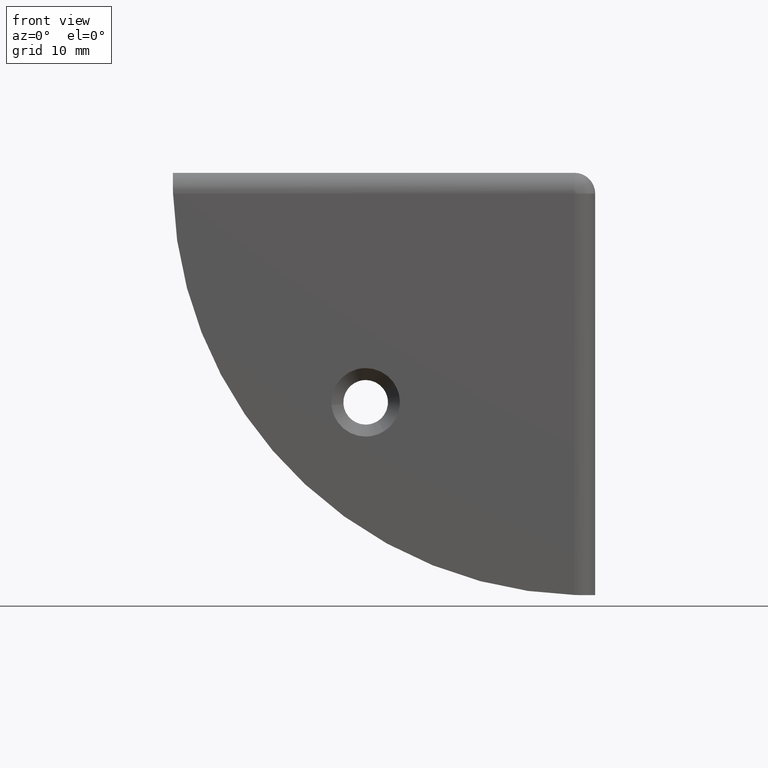
[diagram: clean part render]
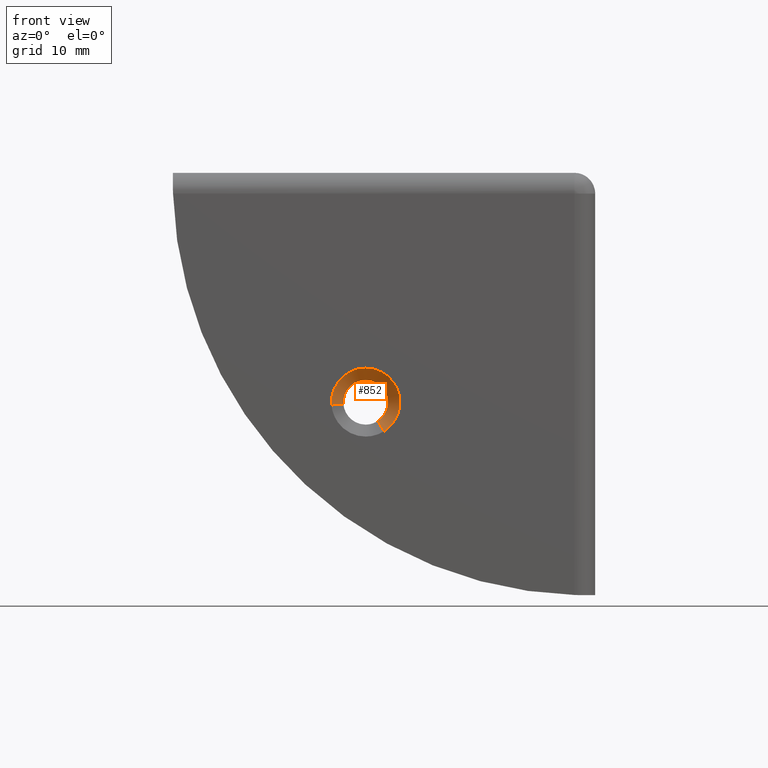
[diagram: same view with one face highlighted and labeled with its STEP entity id]
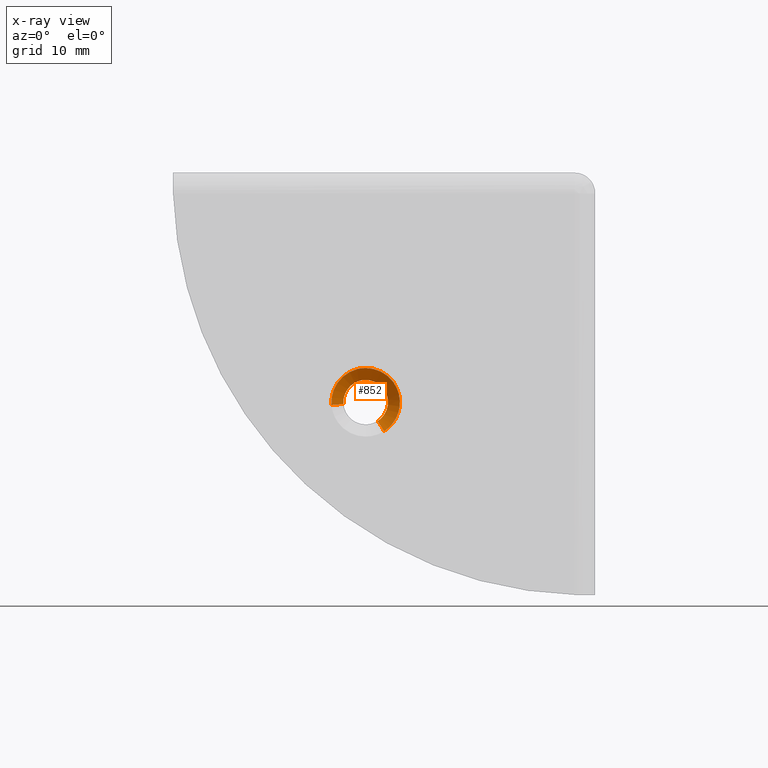
[diagram: x-ray of the same camera — body ghosted, the highlighted face saturated]
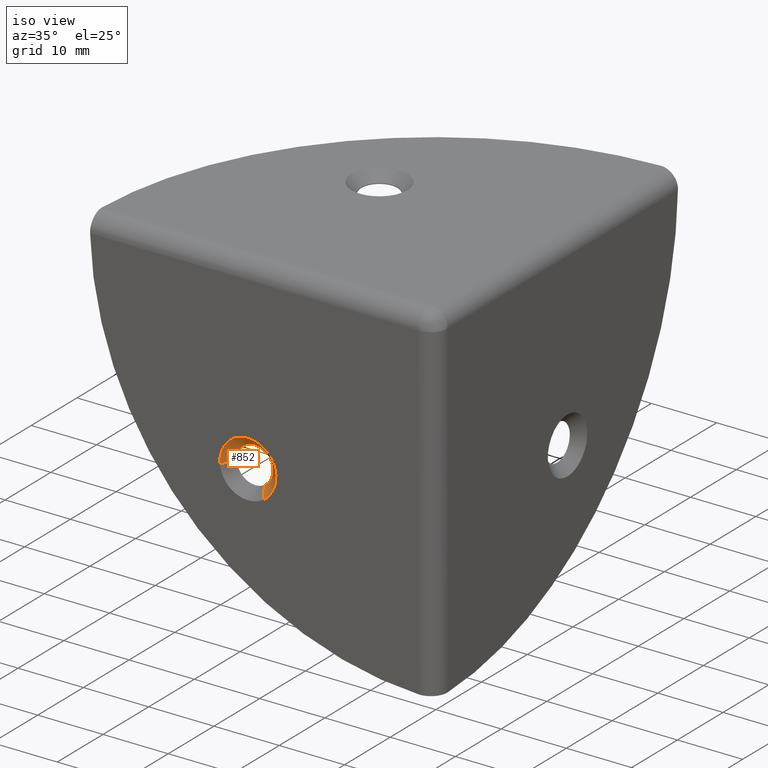
[diagram: same view with one face highlighted and labeled with its STEP entity id]
A machine part, front view. The second image highlights one B-rep face of the part: STEP entity #852.
The next image is the same camera in x-ray: the body ghosted, the highlighted face saturated — about 0% of this face is hidden behind the body in this view.
A second angle (iso view) of the same face is appended — the face is thin or edge-on in the first view.
In plain terms, the highlighted face is a freeform B-spline surface patch.
Its self-contained STEP definition (entity closure, byte-faithful):
#716=CARTESIAN_POINT('',(-27.314187183104860,1.537500000000000,21.871101865012093));
#717=CARTESIAN_POINT('',(-25.915879776775032,1.537500000000000,22.763207464252943));
#718=CARTESIAN_POINT('',(-26.046015865562239,1.537500000000000,24.416743251948169));
#719=CARTESIAN_POINT('',(-26.262759117510406,1.537500000000000,27.170727386385941));
#720=CARTESIAN_POINT('',(-29.016743251948171,1.537500000000000,26.953984134437761));
#721=CARTESIAN_POINT('',(-31.770727386385943,1.537500000000000,26.737240882489591));
#722=CARTESIAN_POINT('',(-31.553984134437769,1.537500000000000,23.983256748051829));
#723=CARTESIAN_POINT('',(-26.466567948308221,-0.038437500000000,20.542523438004853));
#724=CARTESIAN_POINT('',(-24.270560966172813,-0.038437500000000,21.943553079889540));
#725=CARTESIAN_POINT('',(-24.474936454932180,-0.038437500000000,24.540389883121779));
#726=CARTESIAN_POINT('',(-24.815326338053957,-0.038437500000000,28.865453428189596));
#727=CARTESIAN_POINT('',(-29.140389883121781,-0.038437500000000,28.525063545067820));
#728=CARTESIAN_POINT('',(-33.465453428189598,-0.038437500000000,28.184673661946039));
#729=CARTESIAN_POINT('',(-33.125063545067817,-0.038437500000000,23.859610116878219));
#737=(BOUNDED_SURFACE()B_SPLINE_SURFACE(2,1,((#716,#723),(#717,#724),(#718,#725),(#719,#726),(#720,#727),(#721,#728),(#722,#729)),.UNSPECIFIED.,.F.,.F.,.U.)B_SPLINE_SURFACE_WITH_KNOTS((3,2,2,3),(2,2),(0.0,4.887947853461825,12.076106461493920,19.264265069526019),(0.0,2.228712185952352),.UNSPECIFIED.)GEOMETRIC_REPRESENTATION_ITEM()RATIONAL_B_SPLINE_SURFACE(((0.872532871172386,0.872532871172386),(0.800832611206852,0.800832611206852),(1.0,1.0),(0.707106781186548,0.707106781186548),(1.0,1.0),(0.707106781186548,0.707106781186548),(1.0,1.0)))REPRESENTATION_ITEM('')SURFACE());
#738=CARTESIAN_POINT('',(-26.019573326186311,1.500000000000000,24.530495857077451));
#739=VERTEX_POINT('',#738);
#740=CARTESIAN_POINT('',(-27.294017778245589,1.499999999993726,21.839487863239260));
#741=VERTEX_POINT('',#740);
#742=CARTESIAN_POINT('',(-26.019573326186315,1.500000000000000,24.530495857077451));
#743=CARTESIAN_POINT('',(-26.000000000000004,1.500000000000000,24.365827535064273));
#744=CARTESIAN_POINT('',(-26.0,1.500000000000000,24.199999999999999));
#745=CARTESIAN_POINT('',(-25.999999999999996,1.500000000000000,22.665057763315652));
#746=CARTESIAN_POINT('',(-27.294017778245593,1.499999999993727,21.839487863239260));
#754=(BOUNDED_CURVE()B_SPLINE_CURVE(2,(#742,#743,#744,#745,#746),.UNSPECIFIED.,.F.,.U.)B_SPLINE_CURVE_WITH_KNOTS((3,2,3),(0.229562473510961,0.250000000000000,0.407950112614417),.UNSPECIFIED.)CURVE()GEOMETRIC_REPRESENTATION_ITEM()RATIONAL_B_SPLINE_CURVE((0.956026754178706,0.976055948328161,1.0,0.814949932417665,0.863729296946812))REPRESENTATION_ITEM(''));
#755=EDGE_CURVE('',#739,#741,#754,.T.);
#756=ORIENTED_EDGE('',*,*,#755,.T.);
#757=CARTESIAN_POINT('',(-26.487241588135380,-2.734382E-012,20.574927789909150));
#758=VERTEX_POINT('',#757);
#759=CARTESIAN_POINT('',(-27.294017778245589,1.499999999993726,21.839487863239260));
#760=CARTESIAN_POINT('',(-26.487241588135380,-2.734382E-012,20.574927789909150));
#761=QUASI_UNIFORM_CURVE('',1,(#759,#760),.UNSPECIFIED.,.F.,.U.);
#762=EDGE_CURVE('',#741,#758,#761,.T.);
#763=ORIENTED_EDGE('',*,*,#762,.T.);
#764=CARTESIAN_POINT('',(-28.800000000000001,0.0,28.500000000000000));
#765=VERTEX_POINT('',#764);
#766=CARTESIAN_POINT('',(-28.800000000000001,0.0,28.500000000000000));
#767=CARTESIAN_POINT('',(-24.499999999999993,0.0,28.499999999999996));
#768=CARTESIAN_POINT('',(-24.500000000000000,0.0,24.199999999999999));
#769=CARTESIAN_POINT('',(-24.500000000000000,0.0,21.842767279205354));
#770=CARTESIAN_POINT('',(-26.487241588135376,-2.734382E-012,20.574927789909154));
#778=(BOUNDED_CURVE()B_SPLINE_CURVE(2,(#766,#767,#768,#769,#770),.UNSPECIFIED.,.F.,.U.)B_SPLINE_CURVE_WITH_KNOTS((3,2,3),(0.0,0.250000000000000,0.407950112623823),.UNSPECIFIED.)CURVE()GEOMETRIC_REPRESENTATION_ITEM()RATIONAL_B_SPLINE_CURVE((1.0,0.707106781186547,1.0,0.814949932406644,0.863729296952622))REPRESENTATION_ITEM(''));
#779=EDGE_CURVE('',#765,#758,#778,.T.);
#780=ORIENTED_EDGE('',*,*,#779,.F.);
#781=CARTESIAN_POINT('',(-33.086744535054322,-4.650589E-012,23.862625888334740));
#782=VERTEX_POINT('',#781);
#783=CARTESIAN_POINT('',(-33.086744535054322,-4.650589E-012,23.862625888334740));
#784=CARTESIAN_POINT('',(-33.099999999999994,0.0,24.031052539831698));
#785=CARTESIAN_POINT('',(-33.099999999999987,0.0,24.199999999999999));
#786=CARTESIAN_POINT('',(-33.100000000000001,0.0,28.499999999999996));
#787=CARTESIAN_POINT('',(-28.800000000000001,0.0,28.500000000000000));
#795=(BOUNDED_CURVE()B_SPLINE_CURVE(2,(#783,#784,#785,#786,#787),.UNSPECIFIED.,.F.,.U.)B_SPLINE_CURVE_WITH_KNOTS((3,2,3),(0.736331300629955,0.750000000000000,1.0),.UNSPECIFIED.)CURVE()GEOMETRIC_REPRESENTATION_ITEM()RATIONAL_B_SPLINE_CURVE((0.969723356165947,0.983986122578056,1.0,0.707106781186547,1.0))REPRESENTATION_ITEM(''));
#796=EDGE_CURVE('',#782,#765,#795,.T.);
#797=ORIENTED_EDGE('',*,*,#796,.F.);
#798=CARTESIAN_POINT('',(-31.591368534453530,1.499999999998046,23.980314531946870));
#799=VERTEX_POINT('',#798);
#800=CARTESIAN_POINT('',(-31.591368534453530,1.499999999998046,23.980314531946870));
#801=CARTESIAN_POINT('',(-33.086744535054322,-4.650589E-012,23.862625888334740));
#802=QUASI_UNIFORM_CURVE('',1,(#800,#801),.UNSPECIFIED.,.F.,.U.);
#803=EDGE_CURVE('',#799,#782,#802,.T.);
#804=ORIENTED_EDGE('',*,*,#803,.F.);
#805=CARTESIAN_POINT('',(-31.594777435576649,1.500000000000000,24.029064089227610));
#806=VERTEX_POINT('',#805);
#807=CARTESIAN_POINT('',(-31.591368534453526,1.499999999998046,23.980314531946870));
#808=CARTESIAN_POINT('',(-31.593285700481086,1.500000000000000,24.004674436027756));
#809=CARTESIAN_POINT('',(-31.594777435576649,1.500000000000000,24.029064089227607));
#817=(BOUNDED_CURVE()B_SPLINE_CURVE(2,(#807,#808,#809),.UNSPECIFIED.,.F.,.U.)B_SPLINE_CURVE_WITH_KNOTS((3,3),(0.736331300630923,0.739332962232734),.UNSPECIFIED.)CURVE()GEOMETRIC_REPRESENTATION_ITEM()RATIONAL_B_SPLINE_CURVE((0.969723356167967,0.972855475553738,0.976072041653411))REPRESENTATION_ITEM(''));
#818=EDGE_CURVE('',#799,#806,#817,.T.);
#819=ORIENTED_EDGE('',*,*,#818,.T.);
#820=CARTESIAN_POINT('',(-28.800000000000001,1.500000000000000,27.0));
#821=VERTEX_POINT('',#820);
#822=CARTESIAN_POINT('',(-31.594777435576656,1.500000000000000,24.029064089227607));
#823=CARTESIAN_POINT('',(-31.599999999999998,1.500000000000000,24.114452262688946));
#824=CARTESIAN_POINT('',(-31.600000000000001,1.500000000000000,24.199999999999999));
#825=CARTESIAN_POINT('',(-31.600000000000001,1.500000000000000,27.0));
#826=CARTESIAN_POINT('',(-28.800000000000001,1.500000000000000,27.0));
#834=(BOUNDED_CURVE()B_SPLINE_CURVE(2,(#822,#823,#824,#825,#826),.UNSPECIFIED.,.F.,.U.)B_SPLINE_CURVE_WITH_KNOTS((3,2,3),(0.739332962232733,0.750000000000000,1.0),.UNSPECIFIED.)CURVE()GEOMETRIC_REPRESENTATION_ITEM()RATIONAL_B_SPLINE_CURVE((0.976072041653410,0.987502787892563,1.0,0.707106781186547,1.0))REPRESENTATION_ITEM(''));
#835=EDGE_CURVE('',#806,#821,#834,.T.);
#836=ORIENTED_EDGE('',*,*,#835,.T.);
#837=CARTESIAN_POINT('',(-28.800000000000001,1.500000000000000,27.0));
#838=CARTESIAN_POINT('',(-26.313111327405565,1.500000000000000,26.999999999999996));
#839=CARTESIAN_POINT('',(-26.019573326186315,1.500000000000000,24.530495857077451));
#847=(BOUNDED_CURVE()B_SPLINE_CURVE(2,(#837,#838,#839),.UNSPECIFIED.,.F.,.U.)B_SPLINE_CURVE_WITH_KNOTS((3,3),(0.0,0.229562473510961),.UNSPECIFIED.)CURVE()GEOMETRIC_REPRESENTATION_ITEM()RATIONAL_B_SPLINE_CURVE((1.0,0.731050832858387,0.956026754178706))REPRESENTATION_ITEM(''));
#848=EDGE_CURVE('',#821,#739,#847,.T.);
#849=ORIENTED_EDGE('',*,*,#848,.T.);
#850=EDGE_LOOP('',(#756,#763,#780,#797,#804,#819,#836,#849));
#851=FACE_OUTER_BOUND('',#850,.T.);
#852=ADVANCED_FACE('',(#851),#737,.F.);